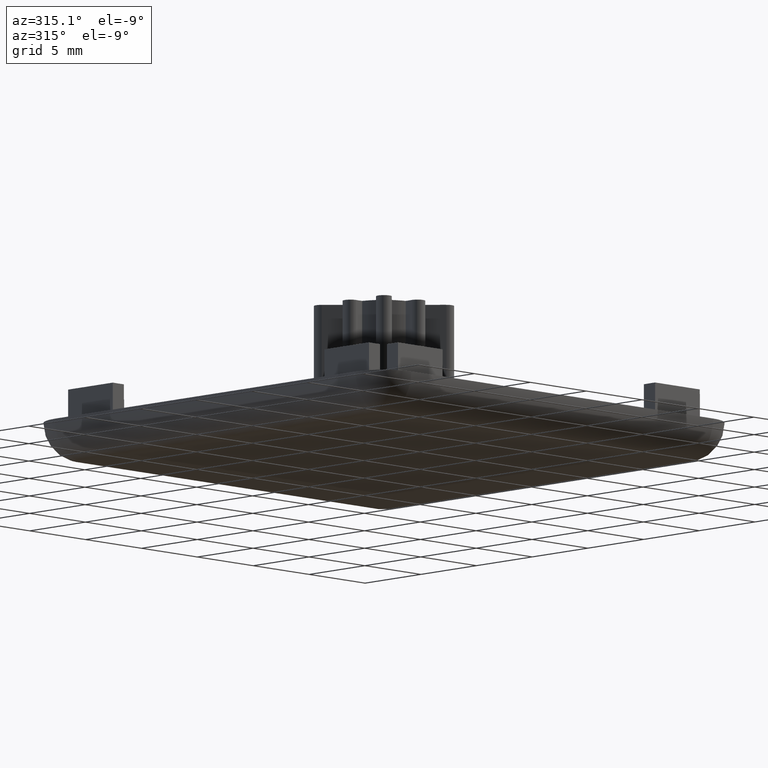
[diagram: clean part render]
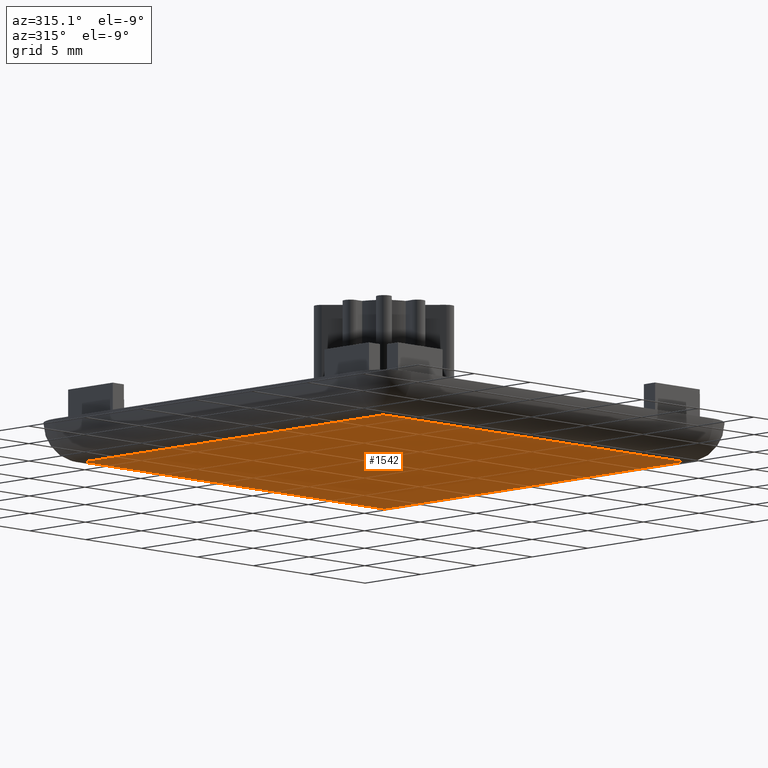
[diagram: same view with one face highlighted and labeled with its STEP entity id]
A machine part, auxiliary view. The second image highlights one B-rep face of the part: STEP entity #1542.
In plain terms, the highlighted planar face has unit normal (0, 0, 1).
Its self-contained STEP definition (entity closure, byte-faithful):
#78=PLANE('',#1675);
#243=LINE('',#2531,#411);
#244=LINE('',#2538,#412);
#245=LINE('',#2544,#413);
#246=LINE('',#2548,#414);
#411=VECTOR('',#2078,27.);
#412=VECTOR('',#2089,27.);
#413=VECTOR('',#2098,27.);
#414=VECTOR('',#2105,27.);
#510=FACE_OUTER_BOUND('',#606,.T.);
#606=EDGE_LOOP('',(#1433,#1434,#1435,#1436));
#791=VERTEX_POINT('',#2525);
#792=VERTEX_POINT('',#2529);
#793=VERTEX_POINT('',#2536);
#794=VERTEX_POINT('',#2540);
#1000=EDGE_CURVE('',#792,#791,#243,.T.);
#1003=EDGE_CURVE('',#793,#792,#244,.T.);
#1006=EDGE_CURVE('',#794,#793,#245,.T.);
#1008=EDGE_CURVE('',#791,#794,#246,.T.);
#1433=ORIENTED_EDGE('',*,*,#1000,.F.);
#1434=ORIENTED_EDGE('',*,*,#1003,.F.);
#1435=ORIENTED_EDGE('',*,*,#1006,.F.);
#1436=ORIENTED_EDGE('',*,*,#1008,.F.);
#1542=ADVANCED_FACE('',(#510),#78,.F.);
#1675=AXIS2_PLACEMENT_3D('',#2549,#2106,#2107);
#2078=DIRECTION('',(1.,6.93889390390723E-17,0.));
#2089=DIRECTION('',(0.,-1.,0.));
#2098=DIRECTION('',(-1.,0.,0.));
#2105=DIRECTION('',(-6.93889390390723E-17,1.,0.));
#2106=DIRECTION('center_axis',(0.,0.,1.));
#2107=DIRECTION('ref_axis',(1.,0.,0.));
#2525=CARTESIAN_POINT('',(2.80097127163295,-10.9951458028759,0.));
#2529=CARTESIAN_POINT('',(-24.1990287283671,-10.9951458028759,0.));
#2531=CARTESIAN_POINT('',(-2.69902872836705,-10.9951458028759,0.));
#2536=CARTESIAN_POINT('',(-24.1990287283671,16.0048541971241,0.));
#2538=CARTESIAN_POINT('',(-24.1990287283671,-5.49514580287586,0.));
#2540=CARTESIAN_POINT('',(2.80097127163294,16.0048541971241,0.));
#2544=CARTESIAN_POINT('',(-18.6990287283671,16.0048541971241,0.));
#2548=CARTESIAN_POINT('',(2.80097127163295,10.5048541971241,0.));
#2549=CARTESIAN_POINT('Origin',(-10.6990287283671,2.50485419712413,0.));